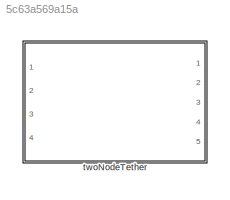
MODEL slx_5c63a569a15a
KIND library
CONFIG AbsTol = auto
CONFIG EnableMultiTasking = off
CONFIG FixedStep = auto
CONFIG MaxStep = auto
CONFIG MinStep = auto
CONFIG RelTol = 1e-3
CONFIG SampleTimeConstraint = Unconstrained
CONFIG Solver = VariableStepAuto
CONFIG SolverName = VariableStepAuto
CONFIG StartTime = 0.0
CONFIG StopTime = 10.0
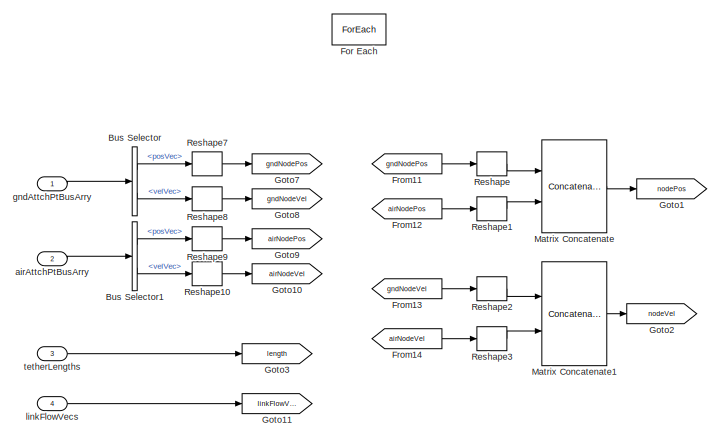
[diagram: twoNodeTether - part 1/2, middle left region]
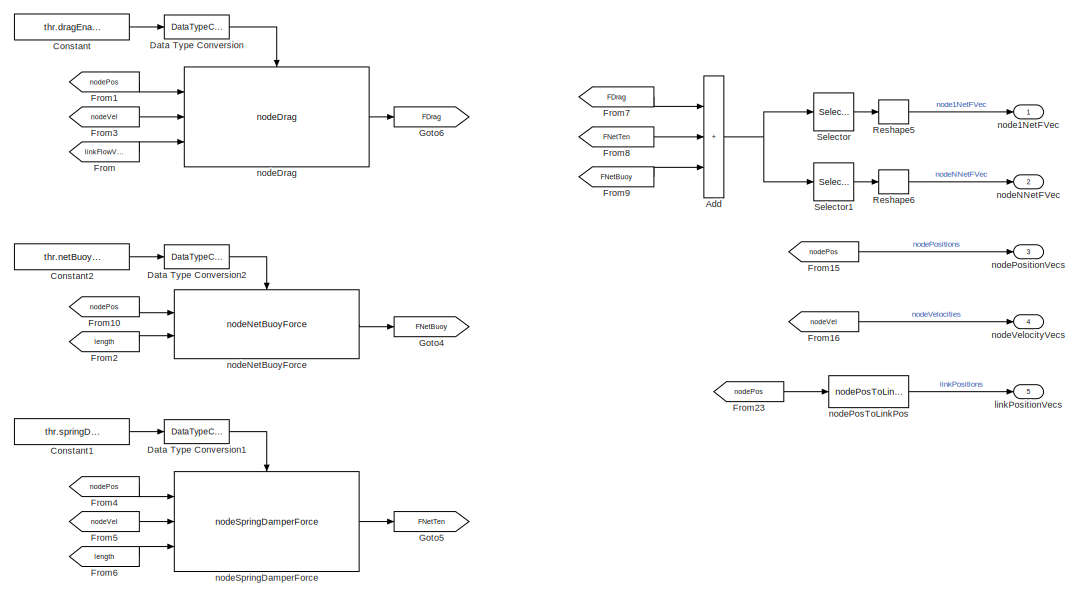
[diagram: twoNodeTether - part 2/2, right side, full height]
BLOCK [SubSystem] twoNodeTether
  Ports = [4, 5]
  RequestExecContextInheritance = off
  VariantControl = twoNodeTether
BLOCK [Sum] twoNodeTether/Add
  IconShape = rectangular
  Inputs = 3
  Ports = [3, 1]
BLOCK [BusSelector] twoNodeTether/Bus Selector
  OutputSignals = posVec,velVec
  Ports = [1, 2]
BLOCK [BusSelector] twoNodeTether/Bus Selector1
  OutputSignals = posVec,velVec
  Ports = [1, 2]
BLOCK [Constant] twoNodeTether/Constant
  Value = thr.dragEnable
BLOCK [Constant] twoNodeTether/Constant1
  Value = thr.springDamperEnable
BLOCK [Constant] twoNodeTether/Constant2
  Value = thr.netBuoyEnable
BLOCK [DataTypeConversion] twoNodeTether/Data Type Conversion
  OutDataTypeStr = boolean
  RndMeth = Floor
  SaturateOnIntegerOverflow = off
BLOCK [DataTypeConversion] twoNodeTether/Data Type Conversion1
  OutDataTypeStr = boolean
  RndMeth = Floor
  SaturateOnIntegerOverflow = off
BLOCK [DataTypeConversion] twoNodeTether/Data Type Conversion2
  OutDataTypeStr = boolean
  RndMeth = Floor
  SaturateOnIntegerOverflow = off
BLOCK [ForEach] twoNodeTether/For Each
  DisableCoverage = on
  IterateSubsysMaskParameter = on,off,off
  Ports = []
  SubsysMaskParameterIterationDimension = 2,1,1
BLOCK [From] twoNodeTether/From
  GotoTag = linkFlowVecs
BLOCK [From] twoNodeTether/From1
  GotoTag = nodePos
BLOCK [From] twoNodeTether/From10
  GotoTag = nodePos
BLOCK [From] twoNodeTether/From11
  GotoTag = gndNodePos
BLOCK [From] twoNodeTether/From12
  GotoTag = airNodePos
BLOCK [From] twoNodeTether/From13
  GotoTag = gndNodeVel
BLOCK [From] twoNodeTether/From14
  GotoTag = airNodeVel
BLOCK [From] twoNodeTether/From15
  GotoTag = nodePos
BLOCK [From] twoNodeTether/From16
  GotoTag = nodeVel
BLOCK [From] twoNodeTether/From2
  GotoTag = length
BLOCK [From] twoNodeTether/From23
  GotoTag = nodePos
BLOCK [From] twoNodeTether/From3
  GotoTag = nodeVel
BLOCK [From] twoNodeTether/From4
  GotoTag = nodePos
BLOCK [From] twoNodeTether/From5
  GotoTag = nodeVel
BLOCK [From] twoNodeTether/From6
  GotoTag = length
BLOCK [From] twoNodeTether/From7
  GotoTag = FDrag
BLOCK [From] twoNodeTether/From8
  GotoTag = FNetTen
BLOCK [From] twoNodeTether/From9
  GotoTag = FNetBuoy
BLOCK [Goto] twoNodeTether/Goto1
  GotoTag = nodePos
BLOCK [Goto] twoNodeTether/Goto10
  GotoTag = airNodeVel
BLOCK [Goto] twoNodeTether/Goto11
  GotoTag = linkFlowVecs
BLOCK [Goto] twoNodeTether/Goto2
  GotoTag = nodeVel
BLOCK [Goto] twoNodeTether/Goto3
  GotoTag = length
BLOCK [Goto] twoNodeTether/Goto4
  GotoTag = FNetBuoy
BLOCK [Goto] twoNodeTether/Goto5
  GotoTag = FNetTen
BLOCK [Goto] twoNodeTether/Goto6
  GotoTag = FDrag
BLOCK [Goto] twoNodeTether/Goto7
  GotoTag = gndNodePos
BLOCK [Goto] twoNodeTether/Goto8
  GotoTag = gndNodeVel
BLOCK [Goto] twoNodeTether/Goto9
  GotoTag = airNodePos
BLOCK [Concatenate] twoNodeTether/Matrix Concatenate
  ConcatenateDimension = 2
  Mode = Multidimensional array
  Ports = [2, 1]
BLOCK [Concatenate] twoNodeTether/Matrix Concatenate1
  ConcatenateDimension = 2
  Mode = Multidimensional array
  Ports = [2, 1]
BLOCK [Reshape] twoNodeTether/Reshape
  OutputDimensionality = Column vector (2-D)
  Ports = [1, 1]
BLOCK [Reshape] twoNodeTether/Reshape1
  OutputDimensionality = Column vector (2-D)
  Ports = [1, 1]
BLOCK [Reshape] twoNodeTether/Reshape10
  OutputDimensionality = Column vector (2-D)
  Ports = [1, 1]
BLOCK [Reshape] twoNodeTether/Reshape2
  OutputDimensionality = Column vector (2-D)
  Ports = [1, 1]
BLOCK [Reshape] twoNodeTether/Reshape3
  OutputDimensionality = Column vector (2-D)
  Ports = [1, 1]
BLOCK [Reshape] twoNodeTether/Reshape5
  OutputDimensionality = Column vector (2-D)
  Ports = [1, 1]
BLOCK [Reshape] twoNodeTether/Reshape6
  OutputDimensionality = Column vector (2-D)
  Ports = [1, 1]
BLOCK [Reshape] twoNodeTether/Reshape7
  OutputDimensionality = Column vector (2-D)
  Ports = [1, 1]
BLOCK [Reshape] twoNodeTether/Reshape8
  OutputDimensionality = Column vector (2-D)
  Ports = [1, 1]
BLOCK [Reshape] twoNodeTether/Reshape9
  OutputDimensionality = Column vector (2-D)
  Ports = [1, 1]
BLOCK [Selector] twoNodeTether/Selector
  IndexOptions = Select all,Index vector (dialog)
  Indices = [1 3],1
  InputPortWidth = 3
  NumberOfDimensions = 2
  OutputSizes = 1,1
  Ports = [1, 1]
BLOCK [Selector] twoNodeTether/Selector1
  IndexOptions = Select all,Index vector (dialog)
  Indices = [1 3],2
  InputPortWidth = 3
  NumberOfDimensions = 2
  OutputSizes = 1,1
  Ports = [1, 1]
BLOCK [Inport] twoNodeTether/airAttchPtBusArry
  OutDataTypeStr = Bus: thrAttachPtKinematicsBus
  Partition = on
  PartitionDimension = 1
  PartitionOffset = 0
  PartitionWidth = 1
  Port = 2
BLOCK [Inport] twoNodeTether/gndAttchPtBusArry
  OutDataTypeStr = Bus: thrAttachPtKinematicsBus
  Partition = on
  PartitionDimension = 1
  PartitionOffset = 0
  PartitionWidth = 1
BLOCK [Inport] twoNodeTether/linkFlowVecs
  Partition = on
  PartitionDimension = 3
  PartitionOffset = 0
  PartitionWidth = 1
  Port = 4
BLOCK [Outport] twoNodeTether/linkPositionVecs
  ConcatenationDimension = 3
  Port = 5
  VectorParamsAs1DForOutWhenUnconnected = off
BLOCK [Outport] twoNodeTether/node1NetFVec
  ConcatenationDimension = 3
  VectorParamsAs1DForOutWhenUnconnected = off
BLOCK [Reference] twoNodeTether/nodeDrag  REF=nodeDragForce_ul/nodeDrag
  Ports = [3, 1, 1]
  SourceBlock = nodeDragForce_ul/nodeDrag
BLOCK [Outport] twoNodeTether/nodeNNetFVec
  ConcatenationDimension = 3
  Port = 2
  VectorParamsAs1DForOutWhenUnconnected = off
BLOCK [Reference] twoNodeTether/nodeNetBuoyForce  REF=nodeNetBuoyForce_ul/nodeNetBuoyForce
  Ports = [2, 1, 1]
  SourceBlock = nodeNetBuoyForce_ul/nodeNetBuoyForce
BLOCK [Reference] twoNodeTether/nodePosToLinkPos  REF=nodePosToLinkPos_ul/nodePosToLinkPos
  Ports = [1, 1]
  SourceBlock = nodePosToLinkPos_ul/nodePosToLinkPos
  SourceType = SubSystem
BLOCK [Outport] twoNodeTether/nodePositionVecs
  ConcatenationDimension = 3
  Port = 3
  VectorParamsAs1DForOutWhenUnconnected = off
BLOCK [Reference] twoNodeTether/nodeSpringDamperForce  REF=nodeSpringDamperForce_ul/nodeSpringDamperForce
  Ports = [3, 1, 1]
  SourceBlock = nodeSpringDamperForce_ul/nodeSpringDamperForce
BLOCK [Outport] twoNodeTether/nodeVelocityVecs
  ConcatenationDimension = 3
  Port = 4
  VectorParamsAs1DForOutWhenUnconnected = off
BLOCK [Inport] twoNodeTether/tetherLengths
  Partition = on
  PartitionDimension = 1
  PartitionOffset = 0
  PartitionWidth = 1
  Port = 3
NET twoNodeTether/Add:1 -> twoNodeTether/Selector1:1, twoNodeTether/Selector:1
LINE twoNodeTether/Bus Selector1:1 -> twoNodeTether/Reshape9:1
LINE twoNodeTether/Bus Selector1:2 -> twoNodeTether/Reshape10:1
LINE twoNodeTether/Bus Selector:1 -> twoNodeTether/Reshape7:1
LINE twoNodeTether/Bus Selector:2 -> twoNodeTether/Reshape8:1
LINE twoNodeTether/Constant1:1 -> twoNodeTether/Data Type Conversion1:1
LINE twoNodeTether/Constant2:1 -> twoNodeTether/Data Type Conversion2:1
LINE twoNodeTether/Constant:1 -> twoNodeTether/Data Type Conversion:1
LINE twoNodeTether/Data Type Conversion1:1 -> twoNodeTether/nodeSpringDamperForce:enable
LINE twoNodeTether/Data Type Conversion2:1 -> twoNodeTether/nodeNetBuoyForce:enable
LINE twoNodeTether/Data Type Conversion:1 -> twoNodeTether/nodeDrag:enable
LINE twoNodeTether/From10:1 -> twoNodeTether/nodeNetBuoyForce:1
LINE twoNodeTether/From11:1 -> twoNodeTether/Reshape:1
LINE twoNodeTether/From12:1 -> twoNodeTether/Reshape1:1
LINE twoNodeTether/From13:1 -> twoNodeTether/Reshape2:1
LINE twoNodeTether/From14:1 -> twoNodeTether/Reshape3:1
LINE twoNodeTether/From15:1 -> twoNodeTether/nodePositionVecs:1
LINE twoNodeTether/From16:1 -> twoNodeTether/nodeVelocityVecs:1
LINE twoNodeTether/From1:1 -> twoNodeTether/nodeDrag:1
LINE twoNodeTether/From23:1 -> twoNodeTether/nodePosToLinkPos:1
LINE twoNodeTether/From2:1 -> twoNodeTether/nodeNetBuoyForce:2
LINE twoNodeTether/From3:1 -> twoNodeTether/nodeDrag:2
LINE twoNodeTether/From4:1 -> twoNodeTether/nodeSpringDamperForce:1
LINE twoNodeTether/From5:1 -> twoNodeTether/nodeSpringDamperForce:2
LINE twoNodeTether/From6:1 -> twoNodeTether/nodeSpringDamperForce:3
LINE twoNodeTether/From7:1 -> twoNodeTether/Add:1
LINE twoNodeTether/From8:1 -> twoNodeTether/Add:2
LINE twoNodeTether/From9:1 -> twoNodeTether/Add:3
LINE twoNodeTether/From:1 -> twoNodeTether/nodeDrag:3
LINE twoNodeTether/Matrix Concatenate1:1 -> twoNodeTether/Goto2:1
LINE twoNodeTether/Matrix Concatenate:1 -> twoNodeTether/Goto1:1
LINE twoNodeTether/Reshape10:1 -> twoNodeTether/Goto10:1
LINE twoNodeTether/Reshape1:1 -> twoNodeTether/Matrix Concatenate:2
LINE twoNodeTether/Reshape2:1 -> twoNodeTether/Matrix Concatenate1:1
LINE twoNodeTether/Reshape3:1 -> twoNodeTether/Matrix Concatenate1:2
LINE twoNodeTether/Reshape5:1 -> twoNodeTether/node1NetFVec:1
LINE twoNodeTether/Reshape6:1 -> twoNodeTether/nodeNNetFVec:1
LINE twoNodeTether/Reshape7:1 -> twoNodeTether/Goto7:1
LINE twoNodeTether/Reshape8:1 -> twoNodeTether/Goto8:1
LINE twoNodeTether/Reshape9:1 -> twoNodeTether/Goto9:1
LINE twoNodeTether/Reshape:1 -> twoNodeTether/Matrix Concatenate:1
LINE twoNodeTether/Selector1:1 -> twoNodeTether/Reshape6:1
LINE twoNodeTether/Selector:1 -> twoNodeTether/Reshape5:1
LINE twoNodeTether/airAttchPtBusArry:1 -> twoNodeTether/Bus Selector1:1
LINE twoNodeTether/gndAttchPtBusArry:1 -> twoNodeTether/Bus Selector:1
LINE twoNodeTether/linkFlowVecs:1 -> twoNodeTether/Goto11:1
LINE twoNodeTether/nodeDrag:1 -> twoNodeTether/Goto6:1
LINE twoNodeTether/nodeNetBuoyForce:1 -> twoNodeTether/Goto4:1
LINE twoNodeTether/nodePosToLinkPos:1 -> twoNodeTether/linkPositionVecs:1
LINE twoNodeTether/nodeSpringDamperForce:1 -> twoNodeTether/Goto5:1
LINE twoNodeTether/tetherLengths:1 -> twoNodeTether/Goto3:1
note: NET lines group one-source signal fan-out (src -> all destinations, sorted); 1:1 wires keep LINE
